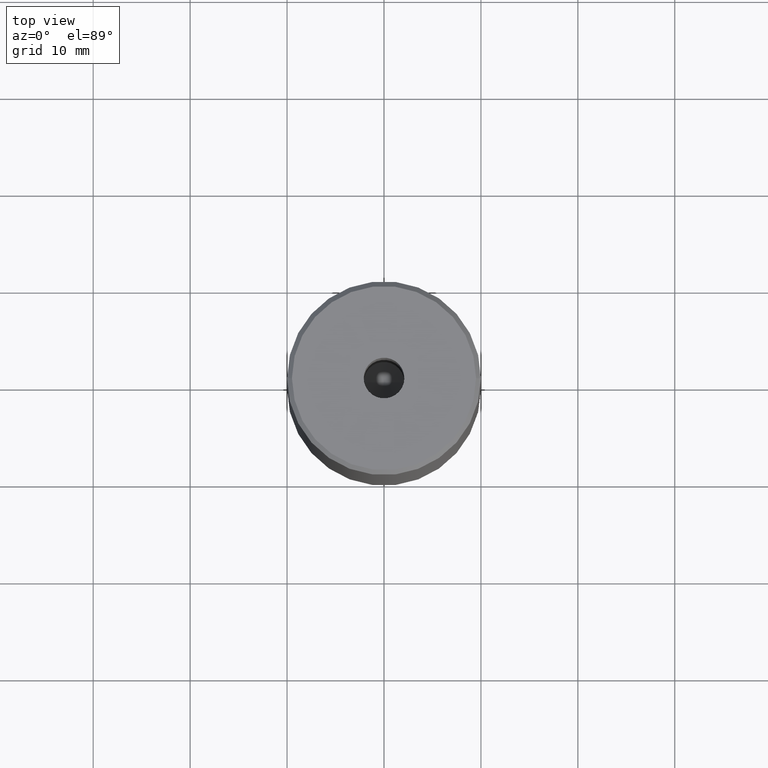
[diagram: clean part render]
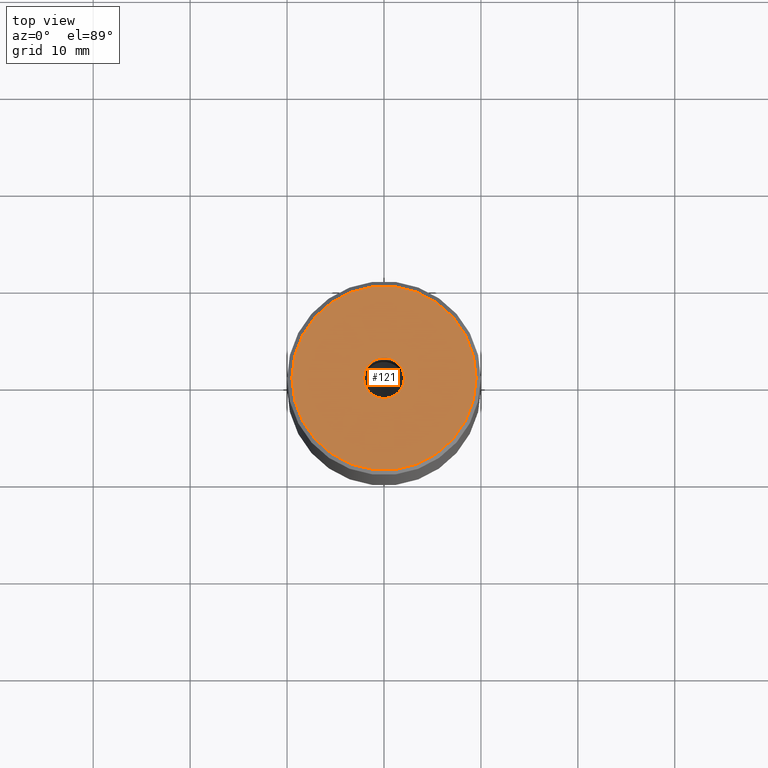
[diagram: same view with one face highlighted and labeled with its STEP entity id]
A machine part, top view. The second image highlights one B-rep face of the part: STEP entity #121.
In plain terms, the highlighted planar face has unit normal (0, -0, 1).
Its self-contained STEP definition (entity closure, byte-faithful):
#22 = DIRECTION ( 'NONE',  ( 1.000000000000000000, 0.000000000000000000, 0.000000000000000000 ) ) ;
#36 = AXIS2_PLACEMENT_3D ( 'NONE', #190, #547, #22 ) ;
#47 = DIRECTION ( 'NONE',  ( 1.000000000000000000, 0.000000000000000000, 0.000000000000000000 ) ) ;
#56 = DIRECTION ( 'NONE',  ( -0.000000000000000000, -0.000000000000000000, 1.000000000000000000 ) ) ;
#58 = DIRECTION ( 'NONE',  ( -0.000000000000000000, -0.000000000000000000, 1.000000000000000000 ) ) ;
#117 = EDGE_LOOP ( 'NONE', ( #382, #347 ) ) ;
#121 = ADVANCED_FACE ( 'NONE', ( #154, #515 ), #536, .T. ) ;
#133 = EDGE_CURVE ( 'NONE', #525, #206, #217, .T. ) ;
#135 = CARTESIAN_POINT ( 'NONE',  ( 0.000000000000000000, 0.000000000000000000, -1.990051048614449116E-16 ) ) ;
#137 = EDGE_CURVE ( 'NONE', #176, #139, #527, .T. ) ;
#139 = VERTEX_POINT ( 'NONE', #390 ) ;
#145 = CARTESIAN_POINT ( 'NONE',  ( 9.500000000000001776, 1.194030629168669469E-15, 0.000000000000000000 ) ) ;
#154 = FACE_BOUND ( 'NONE', #551, .T. ) ;
#176 = VERTEX_POINT ( 'NONE', #145 ) ;
#190 = CARTESIAN_POINT ( 'NONE',  ( 0.000000000000000000, 0.000000000000000000, 0.000000000000000000 ) ) ;
#198 = CARTESIAN_POINT ( 'NONE',  ( 2.099999999999998757, 0.000000000000000000, -1.990051048614449116E-16 ) ) ;
#206 = VERTEX_POINT ( 'NONE', #198 ) ;
#217 = CIRCLE ( 'NONE', #333, 2.099999999999998757 ) ;
#220 = EDGE_CURVE ( 'NONE', #139, #176, #242, .T. ) ;
#237 = CARTESIAN_POINT ( 'NONE',  ( 0.000000000000000000, 0.000000000000000000, -1.990051048614449116E-16 ) ) ;
#242 = CIRCLE ( 'NONE', #36, 9.500000000000001776 ) ;
#265 = ORIENTED_EDGE ( 'NONE', *, *, #587, .F. ) ;
#277 = CARTESIAN_POINT ( 'NONE',  ( -2.099999999999998757, 2.571758278209440478E-16, -1.990051048614449116E-16 ) ) ;
#278 = CIRCLE ( 'NONE', #327, 2.099999999999998757 ) ;
#311 = CARTESIAN_POINT ( 'NONE',  ( 0.000000000000000000, 0.000000000000000000, 0.000000000000000000 ) ) ;
#327 = AXIS2_PLACEMENT_3D ( 'NONE', #237, #56, #386 ) ;
#333 = AXIS2_PLACEMENT_3D ( 'NONE', #135, #58, #342 ) ;
#342 = DIRECTION ( 'NONE',  ( 1.000000000000000000, 0.000000000000000000, 0.000000000000000000 ) ) ;
#347 = ORIENTED_EDGE ( 'NONE', *, *, #137, .T. ) ;
#382 = ORIENTED_EDGE ( 'NONE', *, *, #220, .T. ) ;
#386 = DIRECTION ( 'NONE',  ( 1.000000000000000000, 0.000000000000000000, 0.000000000000000000 ) ) ;
#389 = CARTESIAN_POINT ( 'NONE',  ( 0.000000000000000000, 0.000000000000000000, 0.000000000000000000 ) ) ;
#390 = CARTESIAN_POINT ( 'NONE',  ( -9.500000000000001776, 0.000000000000000000, 0.000000000000000000 ) ) ;
#407 = AXIS2_PLACEMENT_3D ( 'NONE', #311, #533, #429 ) ;
#429 = DIRECTION ( 'NONE',  ( 1.000000000000000000, 0.000000000000000000, 0.000000000000000000 ) ) ;
#446 = ORIENTED_EDGE ( 'NONE', *, *, #133, .F. ) ;
#511 = AXIS2_PLACEMENT_3D ( 'NONE', #389, #584, #47 ) ;
#515 = FACE_OUTER_BOUND ( 'NONE', #117, .T. ) ;
#525 = VERTEX_POINT ( 'NONE', #277 ) ;
#527 = CIRCLE ( 'NONE', #407, 9.500000000000001776 ) ;
#533 = DIRECTION ( 'NONE',  ( -0.000000000000000000, -0.000000000000000000, 1.000000000000000000 ) ) ;
#536 = PLANE ( 'NONE',  #511 ) ;
#547 = DIRECTION ( 'NONE',  ( -0.000000000000000000, -0.000000000000000000, 1.000000000000000000 ) ) ;
#551 = EDGE_LOOP ( 'NONE', ( #265, #446 ) ) ;
#584 = DIRECTION ( 'NONE',  ( 0.000000000000000000, -0.000000000000000000, 1.000000000000000000 ) ) ;
#587 = EDGE_CURVE ( 'NONE', #206, #525, #278, .T. ) ;